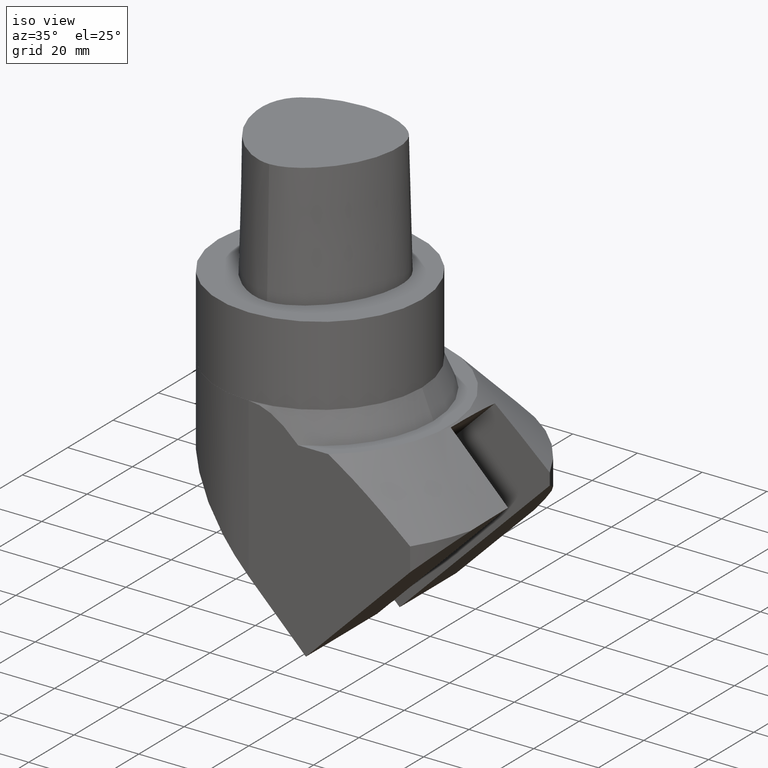
[diagram: clean part render]
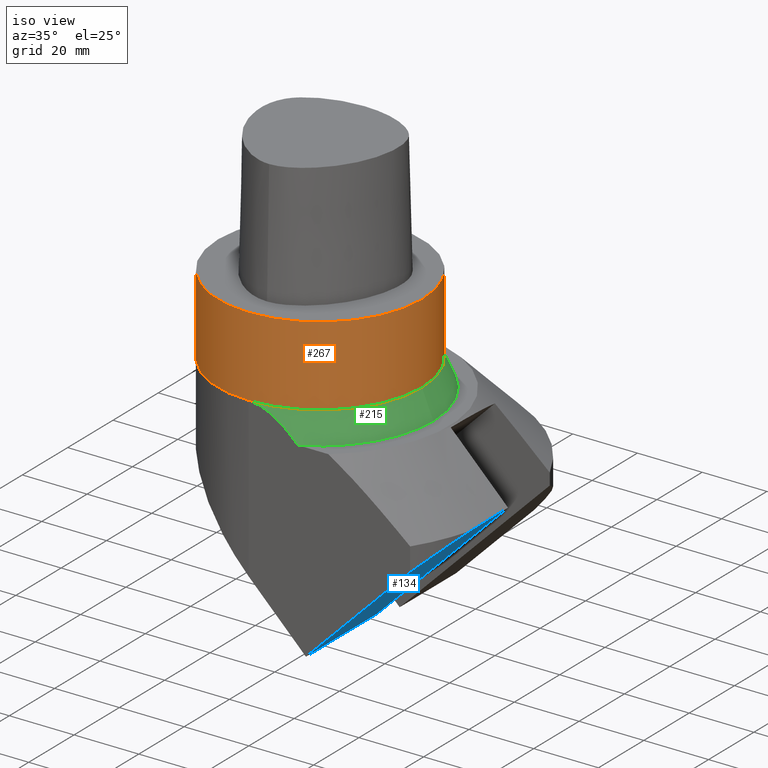
[diagram: same view with three faces highlighted in distinct colors, each labeled with its STEP entity id]
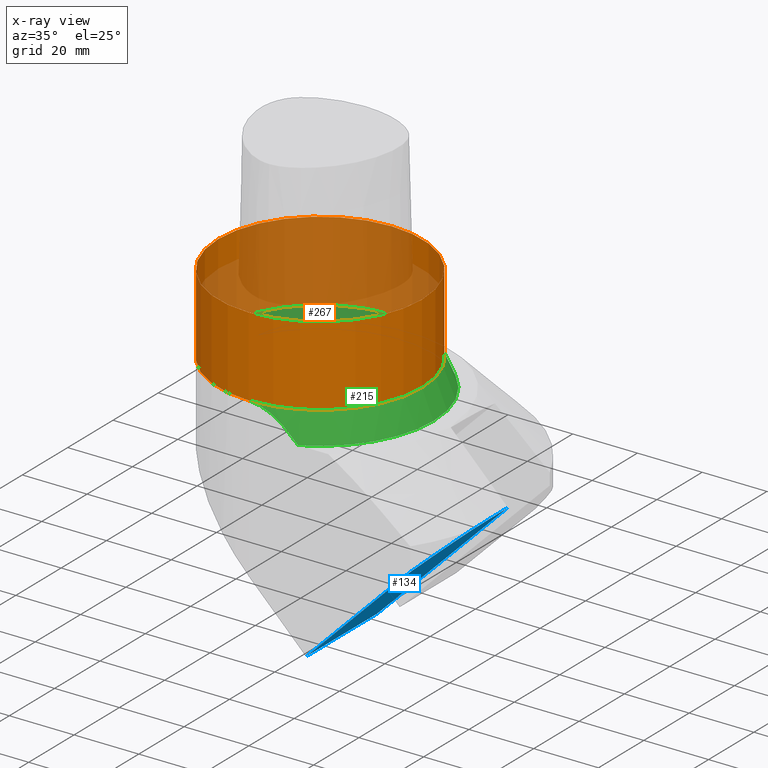
[diagram: x-ray of the same camera — body ghosted, the three highlighted faces saturated]
A machine part, iso view with three faces highlighted in distinct colors.
The next image is the same camera in x-ray (body ghosted, the three faces saturated) — at least one of them is partly hidden behind the body in this view.
Their STEP definitions:

[orange] entity #267 — the highlighted cylindrical surface (bore or boss wall) has radius 31.4925 mm, axis along (0, -0, -1).
#110=EDGE_CURVE('240[2]',#323,#323,#324,.T.);
#267=ADVANCED_FACE('240[2]',(#543,#544),#545,.T.);
#280=EDGE_CURVE('240[2]',#560,#560,#561,.T.);
#323=VERTEX_POINT('',#596);
#324=CIRCLE('',#597,31.4925000000001);
#543=FACE_BOUND('',#1173,.T.);
#544=FACE_BOUND('',#1174,.T.);
#545=CYLINDRICAL_SURFACE('',#1175,31.4925000000001);
#560=VERTEX_POINT('',#1215);
#561=CIRCLE('',#1216,31.4925000000001);
#596=CARTESIAN_POINT('',(31.4925000000001,-1.11468833036729E-014,-24.5819994242193));
#597=AXIS2_PLACEMENT_3D('',#1282,#1283,#1284);
#1173=EDGE_LOOP('',(#1523));
#1174=EDGE_LOOP('',(#1524));
#1175=AXIS2_PLACEMENT_3D('',#1525,#1526,#1527);
#1215=CARTESIAN_POINT('',(-31.4925000000001,5.78507839832221E-015,-7.18655329867095E-014));
#1216=AXIS2_PLACEMENT_3D('',#1545,#1546,#1547);
#1282=CARTESIAN_POINT('',(3.01042669115102E-015,-1.50521334557561E-015,-24.5819994242193));
#1283=DIRECTION('',(1.22464679914735E-016,-6.12323399573677E-017,-1.0));
#1284=DIRECTION('',(-1.0,1.83697019872103E-016,-1.22464679914735E-016));
#1523=ORIENTED_EDGE('',*,*,#110,.F.);
#1524=ORIENTED_EDGE('',*,*,#280,.F.);
#1525=CARTESIAN_POINT('',(4.8435258864394E-014,-1.29965765578023E-015,-21.2250202537596));
#1526=DIRECTION('',(2.28198881722218E-015,-6.12323399573681E-017,-1.0));
#1527=DIRECTION('',(-1.0,1.83697019872103E-016,-2.28198881722218E-015));
#1545=CARTESIAN_POINT('',(0.0,0.0,0.0));
#1546=DIRECTION('',(-2.28198881722218E-015,6.12323399573681E-017,1.0));
#1547=DIRECTION('',(-1.0,1.83697019872103E-016,-2.28198881722218E-015));

[blue] entity #134 — the highlighted planar face has unit normal (-0.7071, 0, 0.7071).
#134=ADVANCED_FACE('240[2]',(#361),#362,.F.);
#151=EDGE_CURVE('240[2]',#389,#378,#390,.T.);
#238=EDGE_CURVE('240[2]',#506,#389,#507,.T.);
#257=EDGE_CURVE('240[2]',#506,#346,#532,.T.);
#276=EDGE_CURVE('240[2]',#346,#555,#556,.T.);
#288=EDGE_CURVE('240[2]',#378,#555,#569,.F.);
#346=VERTEX_POINT('',#710);
#361=FACE_OUTER_BOUND('',#746,.T.);
#362=PLANE('',#747);
#378=VERTEX_POINT('',#842);
#389=VERTEX_POINT('',#878);
#390=LINE('',#879,#880);
#506=VERTEX_POINT('',#1069);
#507=B_SPLINE_CURVE_WITH_KNOTS('',3,(#1070,#1071,#1072,#1073,#1074,#1075,#1076,#1077,#1078,#1079,#1080,#1081),.UNSPECIFIED.,.F.,.F.,(4,3,2,3,4),(571.758637574642,577.753720463706,612.689084357925,635.473788164669,635.870919981259),.UNSPECIFIED.);
#532=ELLIPSE('',#1148,83.4386001800122,59.0);
#555=VERTEX_POINT('',#1198);
#556=LINE('',#1199,#1200);
#569=LINE('',#1230,#1231);
#710=CARTESIAN_POINT('',(49.8873731519312,-31.5,-59.1838481636827));
#746=EDGE_LOOP('',(#1314,#1315,#1316,#1317,#1318));
#747=AXIS2_PLACEMENT_3D('',#1319,#1320,#1321);
#842=CARTESIAN_POINT('',(17.677669529664,-8.70480059232517E-015,-91.3935517859495));
#878=CARTESIAN_POINT('',(58.0356104990133,-1.58684607746469E-014,-51.0356108166007));
#879=CARTESIAN_POINT('',(62.3933346049481,-1.4180892429596E-014,-46.6778867106658));
#880=VECTOR('',#1335,1.0);
#1069=CARTESIAN_POINT('',(57.0712209980263,-14.9624775286204,-52.0000003175876));
#1070=CARTESIAN_POINT('',(53.7612951628419,-31.5000000000001,-55.309926152772));
#1071=CARTESIAN_POINT('',(54.0192949037378,-30.5493223827614,-55.0519264118762));
#1072=CARTESIAN_POINT('',(54.2656149027749,-29.5986447655463,-54.8056064128391));
#1073=CARTESIAN_POINT('',(54.5002551599532,-28.6479671483547,-54.5709661556607));
#1074=CARTESIAN_POINT('',(55.867582838393,-23.1080489992225,-53.2036384772209));
#1075=CARTESIAN_POINT('',(56.872186593584,-17.430813040582,-52.1990347220299));
#1076=CARTESIAN_POINT('',(57.8332239078954,-7.83197006054234,-51.2379974077185));
#1077=CARTESIAN_POINT('',(58.0288475712041,-4.02490644169865,-51.0423737444099));
#1078=CARTESIAN_POINT('',(58.0354381910129,-0.200000000000013,-51.0357831246011));
#1079=CARTESIAN_POINT('',(58.0355530639047,-0.133332815894448,-51.0356682517092));
#1080=CARTESIAN_POINT('',(58.0356104990133,-0.066666149225772,-51.0356108166007));
#1081=CARTESIAN_POINT('',(58.0356104990133,-1.58684607746469E-014,-51.0356108166007));
#1148=AXIS2_PLACEMENT_3D('',#1505,#1506,#1507);
#1198=CARTESIAN_POINT('',(17.677669529664,-31.5,-91.3935517859496));
#1199=CARTESIAN_POINT('',(87.0031989394718,-31.5,-22.0680223761425));
#1200=VECTOR('',#1544,100.0);
#1230=CARTESIAN_POINT('',(17.677669529664,-3.29246112062594E-015,-91.3935517859495));
#1231=VECTOR('',#1553,1.0);
#1314=ORIENTED_EDGE('',*,*,#257,.T.);
#1315=ORIENTED_EDGE('',*,*,#276,.T.);
#1316=ORIENTED_EDGE('',*,*,#288,.F.);
#1317=ORIENTED_EDGE('',*,*,#151,.F.);
#1318=ORIENTED_EDGE('',*,*,#238,.F.);
#1319=CARTESIAN_POINT('',(54.5002551599532,-7.80192728347226E-015,-54.5709661556607));
#1320=DIRECTION('',(-0.707106781186544,1.73191211247098E-016,0.707106781186551));
#1321=DIRECTION('',(2.44929359829471E-016,1.0,0.0));
#1335=DIRECTION('',(-0.707106781186551,8.659560562355E-017,-0.707106781186544));
#1505=CARTESIAN_POINT('',(2.48899307322997E-013,-6.67868610316302E-015,-109.071221315613));
#1506=DIRECTION('',(0.707106781186544,-1.73191211247098E-016,-0.707106781186551));
#1507=DIRECTION('',(0.707106781186551,0.0,0.707106781186544));
#1544=DIRECTION('',(-0.707106781186551,2.8539122100259E-016,-0.707106781186544));
#1553=DIRECTION('',(1.83697019872103E-016,1.0,-6.12323399573676E-017));

[green] entity #215 — the highlighted conical surface has half-angle 22.62 deg.
#110=EDGE_CURVE('240[2]',#323,#323,#324,.T.);
#126=EDGE_CURVE('240[2]',#350,#338,#351,.T.);
#175=EDGE_CURVE('240[2]',#423,#424,#425,.T.);
#215=ADVANCED_FACE('240[2]',(#476,#477),#478,.T.);
#236=EDGE_CURVE('240[2]',#423,#350,#504,.F.);
#264=EDGE_CURVE('240[2]',#338,#411,#540,.T.);
#297=EDGE_CURVE('240[2]',#411,#424,#579,.F.);
#323=VERTEX_POINT('',#596);
#324=CIRCLE('',#597,31.4925000000001);
#338=VERTEX_POINT('',#699);
#350=VERTEX_POINT('',#716);
#351=CIRCLE('',#717,31.5);
#411=VERTEX_POINT('',#912);
#423=VERTEX_POINT('',#931);
#424=VERTEX_POINT('',#932);
#425=CIRCLE('',#933,35.0000003695257);
#476=FACE_BOUND('',#1008,.T.);
#477=FACE_BOUND('',#1009,.T.);
#478=CONICAL_SURFACE('',#1010,34.4871794873644,0.394791119425283);
#504=(B_SPLINE_CURVE(2,(#1058,#1059,#1060),.UNSPECIFIED.,.F.,.F.)B_SPLINE_CURVE_WITH_KNOTS((3,3),(1006.50744756688,1255.70824626694),.UNSPECIFIED.)RATIONAL_B_SPLINE_CURVE((7.0712147523417,7.07121475234199,6.69904551762493))BOUNDED_CURVE()REPRESENTATION_ITEM('')GEOMETRIC_REPRESENTATION_ITEM()CURVE());
#540=(B_SPLINE_CURVE(2,(#1161,#1162,#1163),.UNSPECIFIED.,.F.,.F.)B_SPLINE_CURVE_WITH_KNOTS((3,3),(28.7508458167476,42.5392551799053),.UNSPECIFIED.)RATIONAL_B_SPLINE_CURVE((1.11650716149759,1.11650716149759,1.08971056062909))BOUNDED_CURVE()REPRESENTATION_ITEM('')GEOMETRIC_REPRESENTATION_ITEM()CURVE());
#579=B_SPLINE_CURVE_WITH_KNOTS('',3,(#1260,#1261,#1262,#1263,#1264,#1265),.UNSPECIFIED.,.F.,.F.,(4,2,4),(137.736821750894,139.876749544521,144.996488575108),.UNSPECIFIED.);
#596=CARTESIAN_POINT('',(31.4925000000001,-1.11468833036729E-014,-24.5819994242193));
#597=AXIS2_PLACEMENT_3D('',#1282,#1283,#1284);
#699=CARTESIAN_POINT('',(-31.4999999999997,4.28014059827554E-015,-24.5999994242325));
#716=CARTESIAN_POINT('',(2.79900494301447E-013,-31.5,-24.5999994242329));
#717=AXIS2_PLACEMENT_3D('',#1303,#1304,#1305);
#912=CARTESIAN_POINT('',(-31.4999999999997,10.0,-28.3180932014774));
#931=CARTESIAN_POINT('',(15.2561471501424,-31.5,-33.0000003175886));
#932=CARTESIAN_POINT('',(-31.0128910818779,16.223458712937,-33.0000003175887));
#933=AXIS2_PLACEMENT_3D('',#1365,#1366,#1367);
#1008=EDGE_LOOP('',(#1431));
#1009=EDGE_LOOP('',(#1432,#1433,#1434,#1435,#1436));
#1010=AXIS2_PLACEMENT_3D('',#1437,#1438,#1439);
#1058=CARTESIAN_POINT('',(2.79900494301447E-013,-31.5,-24.5999994242329));
#1059=CARTESIAN_POINT('',(7.22659597833194,-31.5,-24.5999994242268));
#1060=CARTESIAN_POINT('',(15.2561471501424,-31.5,-33.0000003175886));
#1161=CARTESIAN_POINT('',(-31.4999999999997,-1.59099457919181E-014,-24.5999994242325));
#1162=CARTESIAN_POINT('',(-31.4999999999997,4.87999807884768,-24.5999994242325));
#1163=CARTESIAN_POINT('',(-31.4999999999997,9.9999999999678,-28.3180932014552));
#1260=CARTESIAN_POINT('',(-31.0128910818779,16.223458712937,-33.0000003175887));
#1261=CARTESIAN_POINT('',(-31.1077271713401,15.6213420690587,-32.5318444456522));
#1262=CARTESIAN_POINT('',(-31.1890592566689,15.0153544160591,-32.0649857029222));
#1263=CARTESIAN_POINT('',(-31.4179901665832,12.9499030609577,-30.4889838443306));
#1264=CARTESIAN_POINT('',(-31.4999999999997,11.4763816630247,-29.3902266808557));
#1265=CARTESIAN_POINT('',(-31.4999999999997,10.0,-28.3180932014774));
#1282=CARTESIAN_POINT('',(3.01042669115102E-015,-1.50521334557561E-015,-24.5819994242193));
#1283=DIRECTION('',(1.22464679914735E-016,-6.12323399573677E-017,-1.0));
#1284=DIRECTION('',(-1.0,1.83697019872103E-016,-1.22464679914735E-016));
#1303=CARTESIAN_POINT('',(5.6136923589771E-014,-1.50631552769569E-015,-24.5999994242329));
#1304=DIRECTION('',(2.28198881722218E-015,-6.12323399573681E-017,-1.0));
#1305=DIRECTION('',(1.0,-1.83697019872103E-016,2.28198881722218E-015));
#1365=CARTESIAN_POINT('',(7.5305631693066E-014,-2.02066723803985E-015,-33.0000003175887));
#1366=DIRECTION('',(-2.28198881722218E-015,6.12323399573681E-017,1.0));
#1367=DIRECTION('',(1.0,-1.83697019872103E-016,2.28198881722218E-015));
#1431=ORIENTED_EDGE('',*,*,#110,.T.);
#1432=ORIENTED_EDGE('',*,*,#264,.F.);
#1433=ORIENTED_EDGE('',*,*,#126,.F.);
#1434=ORIENTED_EDGE('',*,*,#236,.F.);
#1435=ORIENTED_EDGE('',*,*,#175,.T.);
#1436=ORIENTED_EDGE('',*,*,#297,.F.);
#1437=CARTESIAN_POINT('',(7.2497028046902E-014,-1.94530430375661E-015,-31.76923019945));
#1438=DIRECTION('',(2.28198881722218E-015,-6.12323399573681E-017,-1.0));
#1439=DIRECTION('',(1.0,-1.83697019872103E-016,2.28198881722218E-015));